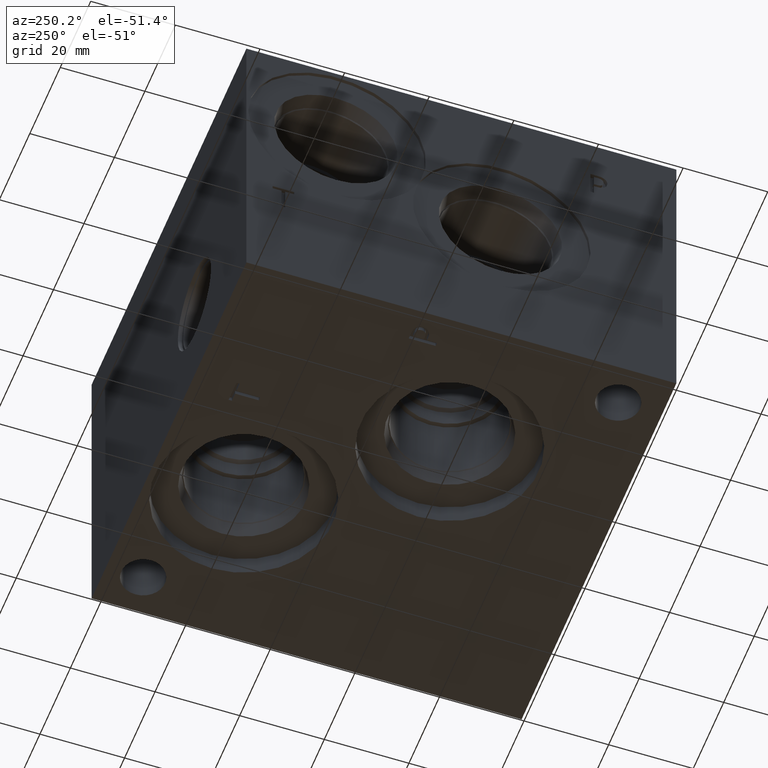
[diagram: clean part render]
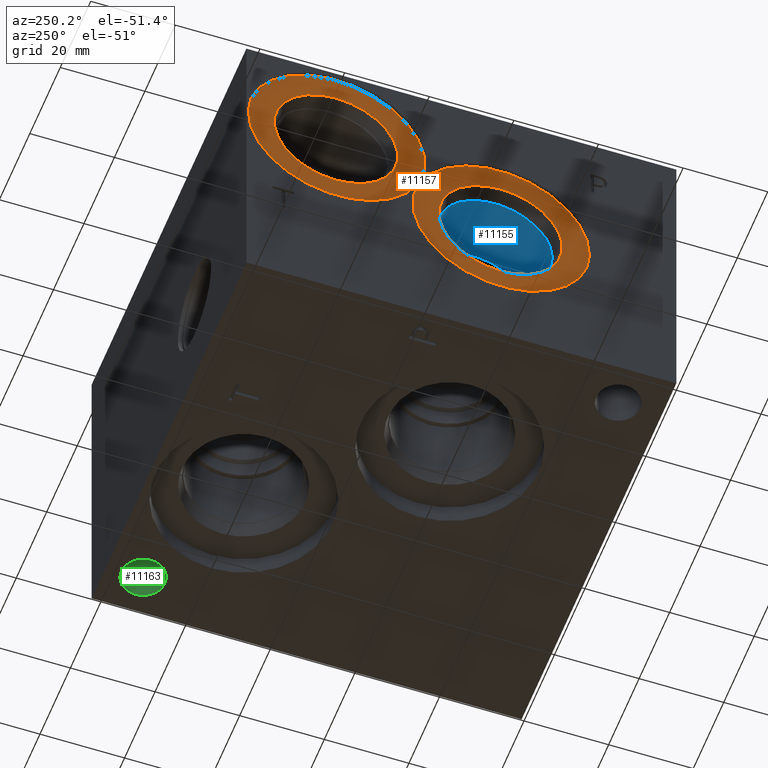
[diagram: same view with three faces highlighted in distinct colors, each labeled with its STEP entity id]
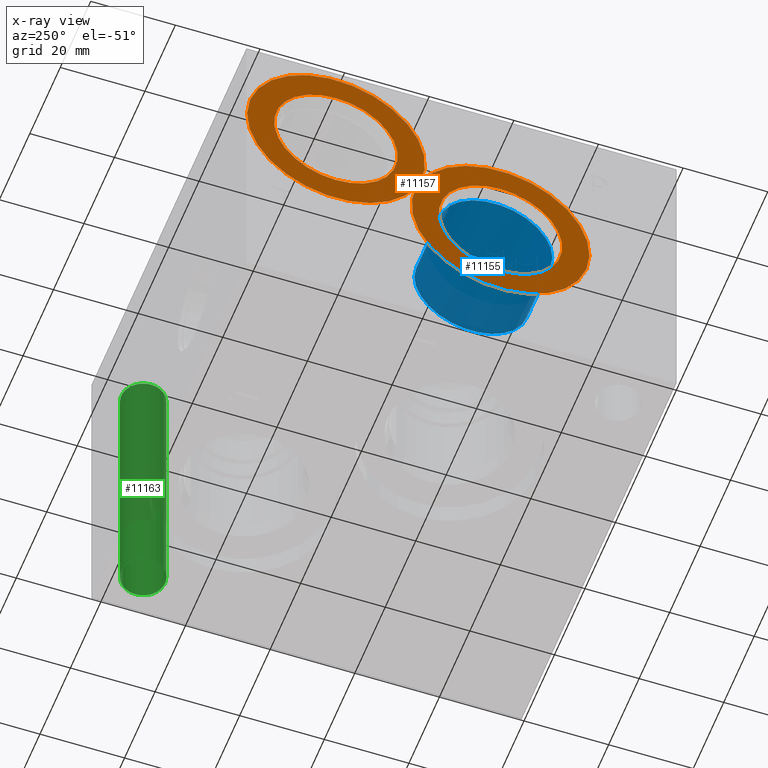
[diagram: x-ray of the same camera — body ghosted, the three highlighted faces saturated]
A machine part, auxiliary view with three faces highlighted in distinct colors.
The next image is the same camera in x-ray (body ghosted, the three faces saturated) — at least one of them is partly hidden behind the body in this view.
Their STEP definitions:

[orange] entity #11157 — the highlighted planar face has unit normal (1, 0, 0).
#228=CIRCLE('',#11705,21.0185);
#229=CIRCLE('',#11707,14.5923);
#230=CIRCLE('',#11708,14.5923);
#239=CIRCLE('',#11723,21.0185);
#240=CIRCLE('',#11725,14.5923);
#241=CIRCLE('',#11726,14.5923);
#362=FACE_BOUND('',#2005,.T.);
#363=FACE_BOUND('',#2006,.T.);
#1376=FACE_OUTER_BOUND('',#2004,.T.);
#2004=EDGE_LOOP('',(#9644,#9645));
#2005=EDGE_LOOP('',(#9646,#9647));
#2006=EDGE_LOOP('',(#9648,#9649));
#5117=VERTEX_POINT('',#19068);
#5118=VERTEX_POINT('',#19070);
#5119=VERTEX_POINT('',#19074);
#5120=VERTEX_POINT('',#19075);
#5129=VERTEX_POINT('',#19106);
#5130=VERTEX_POINT('',#19107);
#6643=EDGE_CURVE('',#5117,#5118,#228,.T.);
#6645=EDGE_CURVE('',#5119,#5120,#229,.T.);
#6646=EDGE_CURVE('',#5120,#5119,#230,.T.);
#6659=EDGE_CURVE('',#5118,#5117,#239,.T.);
#6660=EDGE_CURVE('',#5129,#5130,#240,.T.);
#6661=EDGE_CURVE('',#5130,#5129,#241,.T.);
#9644=ORIENTED_EDGE('',*,*,#6659,.F.);
#9645=ORIENTED_EDGE('',*,*,#6643,.F.);
#9646=ORIENTED_EDGE('',*,*,#6645,.T.);
#9647=ORIENTED_EDGE('',*,*,#6646,.T.);
#9648=ORIENTED_EDGE('',*,*,#6660,.T.);
#9649=ORIENTED_EDGE('',*,*,#6661,.T.);
#10174=PLANE('',#11724);
#11157=ADVANCED_FACE('',(#1376,#362,#363),#10174,.F.);
#11705=AXIS2_PLACEMENT_3D('',#19071,#13824,#13825);
#11707=AXIS2_PLACEMENT_3D('',#19076,#13829,#13830);
#11708=AXIS2_PLACEMENT_3D('',#19077,#13831,#13832);
#11723=AXIS2_PLACEMENT_3D('',#19104,#13865,#13866);
#11724=AXIS2_PLACEMENT_3D('',#19105,#13867,#13868);
#11725=AXIS2_PLACEMENT_3D('',#19108,#13869,#13870);
#11726=AXIS2_PLACEMENT_3D('',#19109,#13871,#13872);
#13824=DIRECTION('center_axis',(1.,0.,0.));
#13825=DIRECTION('ref_axis',(0.,0.,-1.));
#13829=DIRECTION('center_axis',(1.,0.,0.));
#13830=DIRECTION('ref_axis',(0.,0.,-1.));
#13831=DIRECTION('center_axis',(1.,0.,0.));
#13832=DIRECTION('ref_axis',(0.,0.,-1.));
#13865=DIRECTION('center_axis',(1.,0.,0.));
#13866=DIRECTION('ref_axis',(0.,0.,-1.));
#13867=DIRECTION('center_axis',(1.,0.,0.));
#13868=DIRECTION('ref_axis',(0.,0.,-1.));
#13869=DIRECTION('center_axis',(1.,0.,0.));
#13870=DIRECTION('ref_axis',(0.,0.,-1.));
#13871=DIRECTION('center_axis',(1.,0.,0.));
#13872=DIRECTION('ref_axis',(0.,0.,-1.));
#19068=CARTESIAN_POINT('',(0.7874,61.038501515723,45.2541142070849));
#19070=CARTESIAN_POINT('',(0.7874,60.398898484277,46.8208857929152));
#19071=CARTESIAN_POINT('Origin',(0.7874,80.1624,53.975));
#19074=CARTESIAN_POINT('',(0.7874,80.1624,68.5673));
#19075=CARTESIAN_POINT('',(0.787399999999998,80.1624,39.3827));
#19076=CARTESIAN_POINT('Origin',(0.7874,80.1624,53.975));
#19077=CARTESIAN_POINT('Origin',(0.7874,80.1624,53.975));
#19104=CARTESIAN_POINT('Origin',(0.7874,41.275,38.1));
#19105=CARTESIAN_POINT('Origin',(0.7874,41.275,52.6923));
#19106=CARTESIAN_POINT('',(0.7874,41.275,52.6923));
#19107=CARTESIAN_POINT('',(0.787399999999999,41.275,23.5077));
#19108=CARTESIAN_POINT('Origin',(0.7874,41.275,38.1));
#19109=CARTESIAN_POINT('Origin',(0.7874,41.275,38.1));

[blue] entity #11155 — the highlighted cylindrical surface (bore or boss wall) has radius 13.495 mm, axis along (-1, 0, 0).
#87=CYLINDRICAL_SURFACE('',#11719,13.495);
#235=CIRCLE('',#11717,13.495);
#236=CIRCLE('',#11718,13.495);
#237=CIRCLE('',#11720,13.495);
#238=CIRCLE('',#11721,13.495);
#1374=FACE_OUTER_BOUND('',#2002,.T.);
#2002=EDGE_LOOP('',(#9634,#9635,#9636,#9637,#9638,#9639));
#3074=LINE('',#19101,#4115);
#4115=VECTOR('',#13860,13.495);
#5125=VERTEX_POINT('',#19093);
#5126=VERTEX_POINT('',#19094);
#5127=VERTEX_POINT('',#19098);
#5128=VERTEX_POINT('',#19099);
#6654=EDGE_CURVE('',#5125,#5126,#235,.T.);
#6655=EDGE_CURVE('',#5126,#5125,#236,.T.);
#6656=EDGE_CURVE('',#5127,#5128,#237,.T.);
#6657=EDGE_CURVE('',#5127,#5126,#3074,.T.);
#6658=EDGE_CURVE('',#5128,#5127,#238,.T.);
#9634=ORIENTED_EDGE('',*,*,#6656,.F.);
#9635=ORIENTED_EDGE('',*,*,#6657,.T.);
#9636=ORIENTED_EDGE('',*,*,#6654,.F.);
#9637=ORIENTED_EDGE('',*,*,#6655,.F.);
#9638=ORIENTED_EDGE('',*,*,#6657,.F.);
#9639=ORIENTED_EDGE('',*,*,#6658,.F.);
#11155=ADVANCED_FACE('',(#1374),#87,.F.);
#11717=AXIS2_PLACEMENT_3D('',#19095,#13852,#13853);
#11718=AXIS2_PLACEMENT_3D('',#19096,#13854,#13855);
#11719=AXIS2_PLACEMENT_3D('',#19097,#13856,#13857);
#11720=AXIS2_PLACEMENT_3D('',#19100,#13858,#13859);
#11721=AXIS2_PLACEMENT_3D('',#19102,#13861,#13862);
#13852=DIRECTION('center_axis',(-1.,0.,0.));
#13853=DIRECTION('ref_axis',(0.,1.,0.));
#13854=DIRECTION('center_axis',(-1.,0.,0.));
#13855=DIRECTION('ref_axis',(0.,1.,0.));
#13856=DIRECTION('center_axis',(-1.,0.,0.));
#13857=DIRECTION('ref_axis',(0.,1.,0.));
#13858=DIRECTION('center_axis',(1.,0.,0.));
#13859=DIRECTION('ref_axis',(0.,1.,0.));
#13860=DIRECTION('',(1.,0.,0.));
#13861=DIRECTION('center_axis',(1.,0.,0.));
#13862=DIRECTION('ref_axis',(0.,1.,0.));
#19093=CARTESIAN_POINT('',(19.8374,54.77,38.1));
#19094=CARTESIAN_POINT('',(19.8374,27.78,38.1));
#19095=CARTESIAN_POINT('Origin',(19.8374,41.275,38.1));
#19096=CARTESIAN_POINT('Origin',(19.8374,41.275,38.1));
#19097=CARTESIAN_POINT('Origin',(9.9187,41.275,38.1));
#19098=CARTESIAN_POINT('',(4.285,27.78,38.1));
#19099=CARTESIAN_POINT('',(4.285,41.275,24.605));
#19100=CARTESIAN_POINT('Origin',(4.285,41.275,38.1));
#19101=CARTESIAN_POINT('',(9.9187,27.78,38.1));
#19102=CARTESIAN_POINT('Origin',(4.285,41.275,38.1));

[green] entity #11163 — the highlighted cylindrical surface (bore or boss wall) has radius 5.1562 mm, axis along (0, 0, 1).
#91=CYLINDRICAL_SURFACE('',#11741,5.1562);
#108=CIRCLE('',#11459,5.1562);
#248=CIRCLE('',#11737,5.1562);
#1382=FACE_OUTER_BOUND('',#2013,.T.);
#2013=EDGE_LOOP('',(#9677,#9678,#9679,#9680));
#3079=LINE('',#19138,#4120);
#4120=VECTOR('',#13907,5.1562);
#4851=VERTEX_POINT('',#17931);
#5137=VERTEX_POINT('',#19129);
#6255=EDGE_CURVE('',#4851,#4851,#108,.T.);
#6671=EDGE_CURVE('',#5137,#5137,#248,.T.);
#6675=EDGE_CURVE('',#5137,#4851,#3079,.T.);
#9677=ORIENTED_EDGE('',*,*,#6671,.T.);
#9678=ORIENTED_EDGE('',*,*,#6675,.T.);
#9679=ORIENTED_EDGE('',*,*,#6255,.F.);
#9680=ORIENTED_EDGE('',*,*,#6675,.F.);
#11163=ADVANCED_FACE('',(#1382),#91,.F.);
#11459=AXIS2_PLACEMENT_3D('',#17932,#13118,#13119);
#11737=AXIS2_PLACEMENT_3D('',#19130,#13896,#13897);
#11741=AXIS2_PLACEMENT_3D('',#19137,#13905,#13906);
#13118=DIRECTION('center_axis',(0.,0.,1.));
#13119=DIRECTION('ref_axis',(1.,0.,0.));
#13896=DIRECTION('center_axis',(0.,0.,1.));
#13897=DIRECTION('ref_axis',(1.,0.,0.));
#13905=DIRECTION('center_axis',(0.,0.,1.));
#13906=DIRECTION('ref_axis',(1.,0.,0.));
#13907=DIRECTION('',(0.,0.,-1.));
#17931=CARTESIAN_POINT('',(86.9188,92.8624,0.));
#17932=CARTESIAN_POINT('Origin',(92.075,92.8624,0.));
#19129=CARTESIAN_POINT('',(86.9188,92.8624,62.5856));
#19130=CARTESIAN_POINT('Origin',(92.075,92.8624,62.5856));
#19137=CARTESIAN_POINT('Origin',(92.075,92.8624,-86.4393556307944));
#19138=CARTESIAN_POINT('',(86.9188,92.8624,-86.4393556307944));